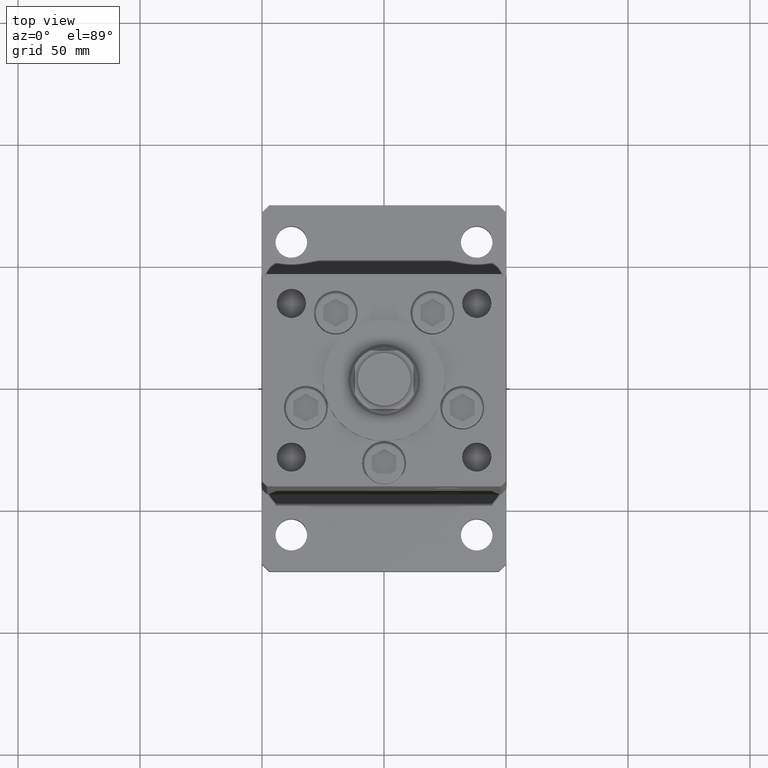
[diagram: clean part render]
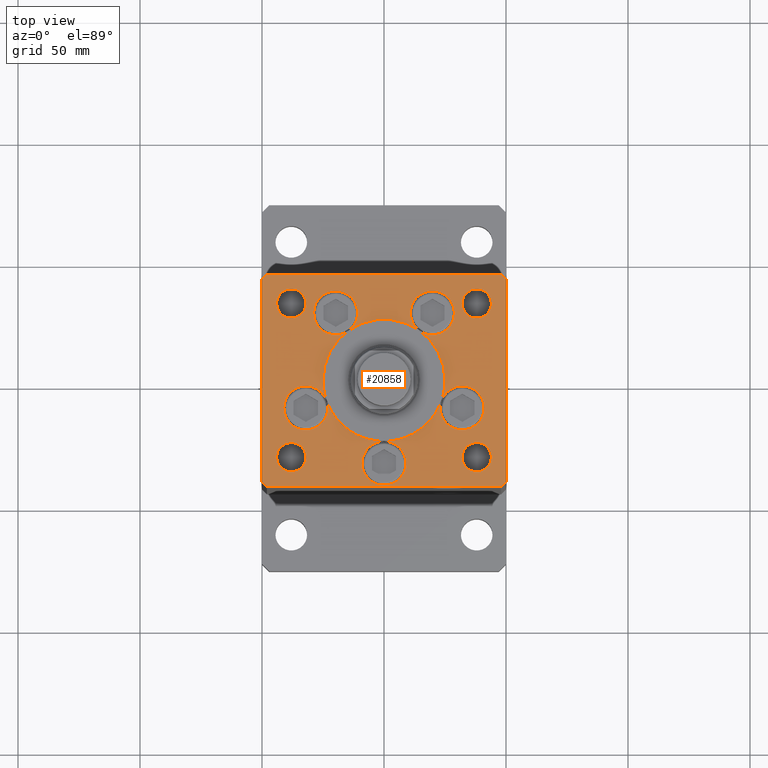
[diagram: same view with one face highlighted and labeled with its STEP entity id]
A machine part, top view. The second image highlights one B-rep face of the part: STEP entity #20858.
In plain terms, the highlighted planar face has unit normal (0, 0, 1).
Its self-contained STEP definition (entity closure, byte-faithful):
#986 = ORIENTED_EDGE ( 'NONE', *, *, #7525, .T. ) ;
#1014 = DIRECTION ( 'NONE',  ( 0.000000000000000000, 0.000000000000000000, 1.000000000000000000 ) ) ;
#1149 = DIRECTION ( 'NONE',  ( 0.000000000000000000, 0.000000000000000000, 1.000000000000000000 ) ) ;
#1277 = VERTEX_POINT ( 'NONE', #49824 ) ;
#1413 = ORIENTED_EDGE ( 'NONE', *, *, #6550, .F. ) ;
#1428 = EDGE_CURVE ( 'NONE', #3538, #51109, #27036, .T. ) ;
#1677 = DIRECTION ( 'NONE',  ( -0.000000000000000000, -0.000000000000000000, -1.000000000000000000 ) ) ;
#1945 = ORIENTED_EDGE ( 'NONE', *, *, #36682, .F. ) ;
#2417 = VECTOR ( 'NONE', #43467, 1000.000000000000114 ) ;
#2426 = DIRECTION ( 'NONE',  ( 1.000000000000000000, 0.000000000000000000, 0.000000000000000000 ) ) ;
#2515 = VERTEX_POINT ( 'NONE', #42644 ) ;
#2796 = CIRCLE ( 'NONE', #21165, 9.000000000000000000 ) ;
#3225 = VERTEX_POINT ( 'NONE', #17028 ) ;
#3246 = ORIENTED_EDGE ( 'NONE', *, *, #15481, .T. ) ;
#3436 = DIRECTION ( 'NONE',  ( 0.000000000000000000, 0.000000000000000000, 1.000000000000000000 ) ) ;
#3493 = CARTESIAN_POINT ( 'NONE',  ( 23.57022603955158502, -8.333333333333332149, 0.000000000000000000 ) ) ;
#3538 = VERTEX_POINT ( 'NONE', #16958 ) ;
#3561 = EDGE_LOOP ( 'NONE', ( #31557, #23728 ) ) ;
#3600 = EDGE_LOOP ( 'NONE', ( #49507, #19234 ) ) ;
#3733 = DIRECTION ( 'NONE',  ( 0.000000000000000000, 0.000000000000000000, 1.000000000000000000 ) ) ;
#4010 = EDGE_CURVE ( 'NONE', #24714, #39535, #30872, .T. ) ;
#4047 = ORIENTED_EDGE ( 'NONE', *, *, #25906, .F. ) ;
#4067 = FACE_OUTER_BOUND ( 'NONE', #22648, .T. ) ;
#4076 = ORIENTED_EDGE ( 'NONE', *, *, #34975, .T. ) ;
#4153 = AXIS2_PLACEMENT_3D ( 'NONE', #25589, #20690, #21497 ) ;
#4186 = VERTEX_POINT ( 'NONE', #24753 ) ;
#4311 = CARTESIAN_POINT ( 'NONE',  ( 0.000000000000000000, -6.938893903907228378E-15, 0.000000000000000000 ) ) ;
#4315 = AXIS2_PLACEMENT_3D ( 'NONE', #22117, #44020, #18030 ) ;
#4340 = FACE_BOUND ( 'NONE', #3600, .T. ) ;
#4771 = DIRECTION ( 'NONE',  ( 0.000000000000000000, 0.000000000000000000, 1.000000000000000000 ) ) ;
#4896 = CARTESIAN_POINT ( 'NONE',  ( 10.82068048781375147, 27.62499999999998934, 0.000000000000000000 ) ) ;
#4918 = CARTESIAN_POINT ( 'NONE',  ( 38.00000000000000711, -31.50000000000000711, 0.000000000000000000 ) ) ;
#5057 = DIRECTION ( 'NONE',  ( 1.000000000000000000, 0.000000000000000000, 0.000000000000000000 ) ) ;
#5167 = AXIS2_PLACEMENT_3D ( 'NONE', #33897, #50341, #42395 ) ;
#5171 = CARTESIAN_POINT ( 'NONE',  ( -32.00000000000000000, 31.50000000000000000, 0.000000000000000000 ) ) ;
#5356 = AXIS2_PLACEMENT_3D ( 'NONE', #22724, #39996, #2426 ) ;
#5465 = CARTESIAN_POINT ( 'NONE',  ( -19.82068048781374969, 27.62499999999998934, 0.000000000000000000 ) ) ;
#5547 = CARTESIAN_POINT ( 'NONE',  ( -23.57022603955158502, -8.333333333333332149, 0.000000000000000000 ) ) ;
#5569 = AXIS2_PLACEMENT_3D ( 'NONE', #47719, #10177, #26870 ) ;
#5956 = LINE ( 'NONE', #35556, #7146 ) ;
#6550 = EDGE_CURVE ( 'NONE', #34798, #26946, #53689, .T. ) ;
#6605 = VERTEX_POINT ( 'NONE', #7934 ) ;
#6687 = DIRECTION ( 'NONE',  ( 1.000000000000000000, 0.000000000000000000, 0.000000000000000000 ) ) ;
#6816 = ORIENTED_EDGE ( 'NONE', *, *, #37808, .T. ) ;
#6885 = DIRECTION ( 'NONE',  ( 0.000000000000000000, 0.000000000000000000, 1.000000000000000000 ) ) ;
#6927 = DIRECTION ( 'NONE',  ( -1.000000000000000000, 0.000000000000000000, 0.000000000000000000 ) ) ;
#6972 = VERTEX_POINT ( 'NONE', #31326 ) ;
#7077 = ORIENTED_EDGE ( 'NONE', *, *, #23672, .T. ) ;
#7146 = VECTOR ( 'NONE', #13677, 1000.000000000000000 ) ;
#7169 = CARTESIAN_POINT ( 'NONE',  ( 0.000000000000000000, -34.00000000000000000, 0.000000000000000000 ) ) ;
#7195 = CARTESIAN_POINT ( 'NONE',  ( -38.00000000000000000, 31.50000000000000000, 0.000000000000000000 ) ) ;
#7410 = DIRECTION ( 'NONE',  ( -1.000000000000000000, 0.000000000000000000, 0.000000000000000000 ) ) ;
#7525 = EDGE_CURVE ( 'NONE', #2515, #46200, #33718, .T. ) ;
#7590 = EDGE_CURVE ( 'NONE', #50502, #28848, #14506, .T. ) ;
#7934 = CARTESIAN_POINT ( 'NONE',  ( -25.00000000000000000, -6.938893903907228378E-15, 0.000000000000000000 ) ) ;
#7980 = DIRECTION ( 'NONE',  ( 1.000000000000000000, 0.000000000000000000, 0.000000000000000000 ) ) ;
#8004 = CIRCLE ( 'NONE', #22036, 8.999999999999998224 ) ;
#8215 = CARTESIAN_POINT ( 'NONE',  ( 25.00000000000000000, -3.877276906038844941E-15, 0.000000000000000000 ) ) ;
#8308 = AXIS2_PLACEMENT_3D ( 'NONE', #40608, #6885, #53209 ) ;
#8431 = CIRCLE ( 'NONE', #31171, 25.00000000000000000 ) ;
#8441 = DIRECTION ( 'NONE',  ( 1.000000000000000000, 0.000000000000000000, 0.000000000000000000 ) ) ;
#8725 = CARTESIAN_POINT ( 'NONE',  ( 38.00000000000000711, -31.50000000000000711, 0.000000000000000000 ) ) ;
#8777 = DIRECTION ( 'NONE',  ( -0.000000000000000000, -0.000000000000000000, -1.000000000000000000 ) ) ;
#9584 = CARTESIAN_POINT ( 'NONE',  ( 50.00000000000000000, 41.50000000000000711, 0.000000000000000000 ) ) ;
#9717 = AXIS2_PLACEMENT_3D ( 'NONE', #38292, #1014, #13616 ) ;
#9827 = CIRCLE ( 'NONE', #23801, 8.999999999999998224 ) ;
#10177 = DIRECTION ( 'NONE',  ( 0.000000000000000000, 0.000000000000000000, 1.000000000000000000 ) ) ;
#10377 = EDGE_CURVE ( 'NONE', #44685, #3538, #52082, .T. ) ;
#10464 = CARTESIAN_POINT ( 'NONE',  ( 38.00000000000000000, 31.50000000000000000, 0.000000000000000000 ) ) ;
#10584 = DIRECTION ( 'NONE',  ( 1.000000000000000000, 0.000000000000000000, 0.000000000000000000 ) ) ;
#10903 = CARTESIAN_POINT ( 'NONE',  ( 50.00000000000000000, -41.49999999999992895, 0.000000000000000000 ) ) ;
#11505 = CIRCLE ( 'NONE', #5356, 9.000000000000001776 ) ;
#12309 = EDGE_CURVE ( 'NONE', #26758, #4186, #36360, .T. ) ;
#12490 = CIRCLE ( 'NONE', #17747, 9.000000000000000000 ) ;
#12529 = ORIENTED_EDGE ( 'NONE', *, *, #35467, .F. ) ;
#12751 = CIRCLE ( 'NONE', #16237, 5.999999999999998224 ) ;
#12815 = CIRCLE ( 'NONE', #27636, 5.999999999999998224 ) ;
#12819 = EDGE_CURVE ( 'NONE', #52335, #14486, #42516, .T. ) ;
#12894 = DIRECTION ( 'NONE',  ( -1.000000000000000000, -2.168404344971008868E-16, 0.000000000000000000 ) ) ;
#13404 = CARTESIAN_POINT ( 'NONE',  ( 0.000000000000000000, 0.000000000000000000, 0.000000000000000000 ) ) ;
#13410 = DIRECTION ( 'NONE',  ( 0.000000000000000000, 0.000000000000000000, 1.000000000000000000 ) ) ;
#13616 = DIRECTION ( 'NONE',  ( 1.000000000000000000, 0.000000000000000000, 0.000000000000000000 ) ) ;
#13677 = DIRECTION ( 'NONE',  ( -0.7071067811865524577, -0.7071067811865426878, 0.000000000000000000 ) ) ;
#13715 = DIRECTION ( 'NONE',  ( 0.000000000000000000, 0.000000000000000000, 1.000000000000000000 ) ) ;
#13759 = AXIS2_PLACEMENT_3D ( 'NONE', #50840, #4771, #21775 ) ;
#13878 = AXIS2_PLACEMENT_3D ( 'NONE', #21342, #38350, #53963 ) ;
#14112 = CARTESIAN_POINT ( 'NONE',  ( -28.82068048781374969, 27.62499999999998934, 0.000000000000000000 ) ) ;
#14332 = VERTEX_POINT ( 'NONE', #39194 ) ;
#14415 = ORIENTED_EDGE ( 'NONE', *, *, #18754, .F. ) ;
#14486 = VERTEX_POINT ( 'NONE', #48247 ) ;
#14506 = LINE ( 'NONE', #52579, #50217 ) ;
#14722 = ORIENTED_EDGE ( 'NONE', *, *, #31650, .F. ) ;
#15146 = EDGE_CURVE ( 'NONE', #34798, #6605, #8431, .T. ) ;
#15290 = ORIENTED_EDGE ( 'NONE', *, *, #7590, .T. ) ;
#15350 = AXIS2_PLACEMENT_3D ( 'NONE', #39237, #1677, #47716 ) ;
#15481 = EDGE_CURVE ( 'NONE', #4186, #26758, #12815, .T. ) ;
#15659 = CIRCLE ( 'NONE', #50688, 5.999999999999998224 ) ;
#16066 = CARTESIAN_POINT ( 'NONE',  ( 0.000000000000000000, -6.938893903907228378E-15, 0.000000000000000000 ) ) ;
#16181 = VERTEX_POINT ( 'NONE', #23375 ) ;
#16237 = AXIS2_PLACEMENT_3D ( 'NONE', #10464, #27682, #48538 ) ;
#16264 = ORIENTED_EDGE ( 'NONE', *, *, #39011, .F. ) ;
#16435 = FACE_BOUND ( 'NONE', #31437, .T. ) ;
#16706 = FACE_BOUND ( 'NONE', #3561, .T. ) ;
#16958 = CARTESIAN_POINT ( 'NONE',  ( 0.000000000000000000, -25.00000000000000000, 0.000000000000000000 ) ) ;
#17028 = CARTESIAN_POINT ( 'NONE',  ( -48.00000000000000711, -43.50000000000002842, 0.000000000000000000 ) ) ;
#17039 = ORIENTED_EDGE ( 'NONE', *, *, #19059, .F. ) ;
#17212 = EDGE_CURVE ( 'NONE', #3538, #30354, #44368, .T. ) ;
#17333 = DIRECTION ( 'NONE',  ( 1.000000000000000000, 0.000000000000000000, 0.000000000000000000 ) ) ;
#17647 = CARTESIAN_POINT ( 'NONE',  ( 50.00000000000000000, 41.50000000000000711, 0.000000000000000000 ) ) ;
#17747 = AXIS2_PLACEMENT_3D ( 'NONE', #53639, #19947, #49259 ) ;
#18013 = EDGE_LOOP ( 'NONE', ( #42737, #3246 ) ) ;
#18030 = DIRECTION ( 'NONE',  ( 1.000000000000000000, 0.000000000000000000, 0.000000000000000000 ) ) ;
#18051 = CIRCLE ( 'NONE', #52179, 25.00000000000000000 ) ;
#18101 = DIRECTION ( 'NONE',  ( 0.7071067811865474617, 0.7071067811865474617, 0.000000000000000000 ) ) ;
#18145 = CARTESIAN_POINT ( 'NONE',  ( 19.82068048781374969, 27.62499999999998934, 0.000000000000000000 ) ) ;
#18271 = LINE ( 'NONE', #51696, #2417 ) ;
#18357 = ORIENTED_EDGE ( 'NONE', *, *, #53649, .T. ) ;
#18518 = EDGE_CURVE ( 'NONE', #1277, #3225, #18271, .T. ) ;
#18754 = EDGE_CURVE ( 'NONE', #6972, #51109, #19930, .T. ) ;
#19028 = AXIS2_PLACEMENT_3D ( 'NONE', #4918, #8777, #46039 ) ;
#19059 = EDGE_CURVE ( 'NONE', #37675, #26765, #43556, .T. ) ;
#19113 = DIRECTION ( 'NONE',  ( 0.000000000000000000, 0.000000000000000000, 1.000000000000000000 ) ) ;
#19147 = DIRECTION ( 'NONE',  ( 1.000000000000000000, 1.156482317317871331E-15, 0.000000000000000000 ) ) ;
#19234 = ORIENTED_EDGE ( 'NONE', *, *, #12819, .F. ) ;
#19416 = CARTESIAN_POINT ( 'NONE',  ( -48.00000000000000711, -43.50000000000002842, 0.000000000000000000 ) ) ;
#19545 = DIRECTION ( 'NONE',  ( -0.000000000000000000, -0.000000000000000000, -1.000000000000000000 ) ) ;
#19741 = ORIENTED_EDGE ( 'NONE', *, *, #26233, .F. ) ;
#19930 = CIRCLE ( 'NONE', #4153, 9.000000000000001776 ) ;
#19947 = DIRECTION ( 'NONE',  ( 0.000000000000000000, 0.000000000000000000, 1.000000000000000000 ) ) ;
#20690 = DIRECTION ( 'NONE',  ( 0.000000000000000000, 0.000000000000000000, 1.000000000000000000 ) ) ;
#20858 = ADVANCED_FACE ( 'NONE', ( #50950, #21337, #16706, #4340, #4067, #16435 ), #25165, .T. ) ;
#21043 = DIRECTION ( 'NONE',  ( 0.000000000000000000, 0.000000000000000000, 1.000000000000000000 ) ) ;
#21165 = AXIS2_PLACEMENT_3D ( 'NONE', #25515, #51030, #17333 ) ;
#21337 = FACE_BOUND ( 'NONE', #18013, .T. ) ;
#21342 = CARTESIAN_POINT ( 'NONE',  ( 0.000000000000000000, -6.938893903907228378E-15, 0.000000000000000000 ) ) ;
#21497 = DIRECTION ( 'NONE',  ( 1.000000000000000000, 0.000000000000000000, 0.000000000000000000 ) ) ;
#21775 = DIRECTION ( 'NONE',  ( 1.000000000000000000, 0.000000000000000000, 0.000000000000000000 ) ) ;
#22036 = AXIS2_PLACEMENT_3D ( 'NONE', #49240, #19113, #27574 ) ;
#22117 = CARTESIAN_POINT ( 'NONE',  ( 0.000000000000000000, -6.938893903907228378E-15, 0.000000000000000000 ) ) ;
#22221 = EDGE_CURVE ( 'NONE', #51109, #53795, #23346, .T. ) ;
#22390 = EDGE_CURVE ( 'NONE', #26628, #34798, #27758, .T. ) ;
#22420 = CARTESIAN_POINT ( 'NONE',  ( 50.00000000000000000, -41.49999999999992895, 0.000000000000000000 ) ) ;
#22648 = EDGE_LOOP ( 'NONE', ( #46128, #7077, #15290, #35999, #52600, #986, #4076, #6816 ) ) ;
#22724 = CARTESIAN_POINT ( 'NONE',  ( -32.05550741379015989, -11.33333333333332860, 0.000000000000000000 ) ) ;
#23346 = CIRCLE ( 'NONE', #13759, 9.000000000000001776 ) ;
#23375 = CARTESIAN_POINT ( 'NONE',  ( 44.00000000000000000, 31.50000000000000000, 0.000000000000000000 ) ) ;
#23410 = ORIENTED_EDGE ( 'NONE', *, *, #23474, .T. ) ;
#23445 = VERTEX_POINT ( 'NONE', #30122 ) ;
#23449 = DIRECTION ( 'NONE',  ( 1.000000000000000000, 0.000000000000000000, 0.000000000000000000 ) ) ;
#23474 = EDGE_CURVE ( 'NONE', #36119, #23445, #42670, .T. ) ;
#23601 = EDGE_CURVE ( 'NONE', #42959, #2515, #47123, .T. ) ;
#23672 = EDGE_CURVE ( 'NONE', #3225, #50502, #28149, .T. ) ;
#23728 = ORIENTED_EDGE ( 'NONE', *, *, #26214, .F. ) ;
#23801 = AXIS2_PLACEMENT_3D ( 'NONE', #53966, #13410, #34233 ) ;
#23854 = DIRECTION ( 'NONE',  ( 1.672022627447525486E-16, -1.000000000000000000, 0.000000000000000000 ) ) ;
#23970 = ORIENTED_EDGE ( 'NONE', *, *, #38059, .F. ) ;
#23983 = EDGE_LOOP ( 'NONE', ( #38382, #16264, #17039, #51867, #19741, #40531, #14415, #1945, #36468, #54081, #28334, #36285, #34351, #48996, #14722, #23970, #34404, #4047, #31486, #12529, #48668, #1413 ) ) ;
#24076 = CARTESIAN_POINT ( 'NONE',  ( -9.000000000000000000, -34.00000000000000000, 0.000000000000000000 ) ) ;
#24288 = AXIS2_PLACEMENT_3D ( 'NONE', #18145, #1149, #34581 ) ;
#24442 = DIRECTION ( 'NONE',  ( 1.000000000000000000, 0.000000000000000000, 0.000000000000000000 ) ) ;
#24714 = VERTEX_POINT ( 'NONE', #5547 ) ;
#24753 = CARTESIAN_POINT ( 'NONE',  ( -44.00000000000000000, 31.50000000000000000, 0.000000000000000000 ) ) ;
#25105 = CARTESIAN_POINT ( 'NONE',  ( 38.00000000000000000, 31.50000000000000000, 0.000000000000000000 ) ) ;
#25165 = PLANE ( 'NONE',  #29453 ) ;
#25515 = CARTESIAN_POINT ( 'NONE',  ( -19.82068048781374969, 27.62499999999998934, 0.000000000000000000 ) ) ;
#25589 = CARTESIAN_POINT ( 'NONE',  ( 32.05550741379015989, -11.33333333333332860, 0.000000000000000000 ) ) ;
#25906 = EDGE_CURVE ( 'NONE', #6605, #24714, #48013, .T. ) ;
#26214 = EDGE_CURVE ( 'NONE', #14332, #16181, #15659, .T. ) ;
#26233 = EDGE_CURVE ( 'NONE', #52336, #26628, #27019, .T. ) ;
#26288 = CARTESIAN_POINT ( 'NONE',  ( 47.99999999999999289, 43.50000000000000000, 0.000000000000000000 ) ) ;
#26628 = VERTEX_POINT ( 'NONE', #46162 ) ;
#26758 = VERTEX_POINT ( 'NONE', #5171 ) ;
#26765 = VERTEX_POINT ( 'NONE', #4896 ) ;
#26767 = CARTESIAN_POINT ( 'NONE',  ( -48.00000000000000000, 43.49999999999997868, 0.000000000000000000 ) ) ;
#26870 = DIRECTION ( 'NONE',  ( 1.000000000000000000, 0.000000000000000000, 0.000000000000000000 ) ) ;
#26946 = VERTEX_POINT ( 'NONE', #51500 ) ;
#27019 = CIRCLE ( 'NONE', #5167, 25.00000000000000000 ) ;
#27036 = CIRCLE ( 'NONE', #4315, 25.00000000000000000 ) ;
#27420 = CARTESIAN_POINT ( 'NONE',  ( -50.00000000000000711, 41.49999999999999289, 0.000000000000000000 ) ) ;
#27574 = DIRECTION ( 'NONE',  ( 1.000000000000000000, 0.000000000000000000, 0.000000000000000000 ) ) ;
#27577 = CIRCLE ( 'NONE', #31967, 6.000000000000005329 ) ;
#27636 = AXIS2_PLACEMENT_3D ( 'NONE', #7195, #19545, #6927 ) ;
#27682 = DIRECTION ( 'NONE',  ( 0.000000000000000000, 0.000000000000000000, 1.000000000000000000 ) ) ;
#27721 = AXIS2_PLACEMENT_3D ( 'NONE', #7169, #32927, #7980 ) ;
#27758 = CIRCLE ( 'NONE', #31289, 25.00000000000000000 ) ;
#28126 = EDGE_CURVE ( 'NONE', #28848, #42959, #31164, .T. ) ;
#28149 = LINE ( 'NONE', #19416, #45349 ) ;
#28334 = ORIENTED_EDGE ( 'NONE', *, *, #10377, .F. ) ;
#28848 = VERTEX_POINT ( 'NONE', #22420 ) ;
#29453 = AXIS2_PLACEMENT_3D ( 'NONE', #13404, #29815, #54233 ) ;
#29815 = DIRECTION ( 'NONE',  ( -0.000000000000000000, 0.000000000000000000, 1.000000000000000000 ) ) ;
#30122 = CARTESIAN_POINT ( 'NONE',  ( 32.00000000000000000, -31.50000000000000711, 0.000000000000000000 ) ) ;
#30354 = VERTEX_POINT ( 'NONE', #24076 ) ;
#30800 = CARTESIAN_POINT ( 'NONE',  ( 32.05550741379015989, -11.33333333333332860, 0.000000000000000000 ) ) ;
#30872 = CIRCLE ( 'NONE', #52755, 9.000000000000001776 ) ;
#31164 = LINE ( 'NONE', #10903, #51580 ) ;
#31171 = AXIS2_PLACEMENT_3D ( 'NONE', #32205, #48126, #10584 ) ;
#31289 = AXIS2_PLACEMENT_3D ( 'NONE', #40915, #36253, #24442 ) ;
#31301 = CARTESIAN_POINT ( 'NONE',  ( -41.05550741379015989, -11.33333333333332682, 0.000000000000000000 ) ) ;
#31326 = CARTESIAN_POINT ( 'NONE',  ( 41.05550741379015989, -11.33333333333332860, 0.000000000000000000 ) ) ;
#31437 = EDGE_LOOP ( 'NONE', ( #23410, #18357 ) ) ;
#31486 = ORIENTED_EDGE ( 'NONE', *, *, #15146, .F. ) ;
#31557 = ORIENTED_EDGE ( 'NONE', *, *, #53511, .F. ) ;
#31650 = EDGE_CURVE ( 'NONE', #38134, #24714, #43816, .T. ) ;
#31967 = AXIS2_PLACEMENT_3D ( 'NONE', #42429, #46535, #50659 ) ;
#32205 = CARTESIAN_POINT ( 'NONE',  ( 0.000000000000000000, -6.938893903907228378E-15, 0.000000000000000000 ) ) ;
#32589 = CARTESIAN_POINT ( 'NONE',  ( -14.57402977045128978, 20.31249999999999289, 0.000000000000000000 ) ) ;
#32927 = DIRECTION ( 'NONE',  ( 0.000000000000000000, 0.000000000000000000, 1.000000000000000000 ) ) ;
#32931 = CIRCLE ( 'NONE', #46032, 25.00000000000000000 ) ;
#33718 = LINE ( 'NONE', #26288, #43213 ) ;
#33857 = CARTESIAN_POINT ( 'NONE',  ( -38.00000000000000711, -31.50000000000000711, 0.000000000000000000 ) ) ;
#33897 = CARTESIAN_POINT ( 'NONE',  ( 0.000000000000000000, -6.938893903907228378E-15, 0.000000000000000000 ) ) ;
#34233 = DIRECTION ( 'NONE',  ( 1.000000000000000000, 0.000000000000000000, 0.000000000000000000 ) ) ;
#34270 = DIRECTION ( 'NONE',  ( 1.000000000000000000, 0.000000000000000000, 0.000000000000000000 ) ) ;
#34351 = ORIENTED_EDGE ( 'NONE', *, *, #17212, .F. ) ;
#34404 = ORIENTED_EDGE ( 'NONE', *, *, #4010, .F. ) ;
#34581 = DIRECTION ( 'NONE',  ( 1.000000000000000000, 0.000000000000000000, 0.000000000000000000 ) ) ;
#34798 = VERTEX_POINT ( 'NONE', #32589 ) ;
#34849 = EDGE_CURVE ( 'NONE', #26628, #37675, #9827, .T. ) ;
#34975 = EDGE_CURVE ( 'NONE', #46200, #43177, #5956, .T. ) ;
#35467 = EDGE_CURVE ( 'NONE', #44586, #34798, #2796, .T. ) ;
#35556 = CARTESIAN_POINT ( 'NONE',  ( -48.00000000000000000, 43.49999999999997868, 0.000000000000000000 ) ) ;
#35999 = ORIENTED_EDGE ( 'NONE', *, *, #28126, .T. ) ;
#36119 = VERTEX_POINT ( 'NONE', #46653 ) ;
#36253 = DIRECTION ( 'NONE',  ( 0.000000000000000000, 0.000000000000000000, 1.000000000000000000 ) ) ;
#36285 = ORIENTED_EDGE ( 'NONE', *, *, #40755, .F. ) ;
#36360 = CIRCLE ( 'NONE', #15350, 5.999999999999998224 ) ;
#36468 = ORIENTED_EDGE ( 'NONE', *, *, #22221, .F. ) ;
#36682 = EDGE_CURVE ( 'NONE', #53795, #6972, #36860, .T. ) ;
#36860 = CIRCLE ( 'NONE', #50882, 9.000000000000001776 ) ;
#37148 = EDGE_CURVE ( 'NONE', #26946, #44586, #44742, .T. ) ;
#37416 = VECTOR ( 'NONE', #38912, 999.9999999999998863 ) ;
#37675 = VERTEX_POINT ( 'NONE', #51865 ) ;
#37808 = EDGE_CURVE ( 'NONE', #43177, #1277, #44160, .T. ) ;
#38059 = EDGE_CURVE ( 'NONE', #39535, #38134, #11505, .T. ) ;
#38134 = VERTEX_POINT ( 'NONE', #49572 ) ;
#38292 = CARTESIAN_POINT ( 'NONE',  ( -32.05550741379015989, -11.33333333333332860, 0.000000000000000000 ) ) ;
#38350 = DIRECTION ( 'NONE',  ( 0.000000000000000000, 0.000000000000000000, 1.000000000000000000 ) ) ;
#38382 = ORIENTED_EDGE ( 'NONE', *, *, #22390, .F. ) ;
#38912 = DIRECTION ( 'NONE',  ( -0.7071067811865512365, 0.7071067811865439090, 0.000000000000000000 ) ) ;
#39011 = EDGE_CURVE ( 'NONE', #26765, #26628, #8004, .T. ) ;
#39053 = CARTESIAN_POINT ( 'NONE',  ( 9.000000000000000000, -34.00000000000000000, 0.000000000000000000 ) ) ;
#39194 = CARTESIAN_POINT ( 'NONE',  ( 32.00000000000000000, 31.50000000000000000, 0.000000000000000000 ) ) ;
#39237 = CARTESIAN_POINT ( 'NONE',  ( -38.00000000000000000, 31.50000000000000000, 0.000000000000000000 ) ) ;
#39535 = VERTEX_POINT ( 'NONE', #31301 ) ;
#39996 = DIRECTION ( 'NONE',  ( 0.000000000000000000, 0.000000000000000000, 1.000000000000000000 ) ) ;
#40531 = ORIENTED_EDGE ( 'NONE', *, *, #51547, .F. ) ;
#40608 = CARTESIAN_POINT ( 'NONE',  ( 0.000000000000000000, -34.00000000000000000, 0.000000000000000000 ) ) ;
#40755 = EDGE_CURVE ( 'NONE', #30354, #44685, #12490, .T. ) ;
#40915 = CARTESIAN_POINT ( 'NONE',  ( 0.000000000000000000, -6.938893903907228378E-15, 0.000000000000000000 ) ) ;
#41307 = DIRECTION ( 'NONE',  ( 1.000000000000000000, 0.000000000000000000, 0.000000000000000000 ) ) ;
#41425 = CARTESIAN_POINT ( 'NONE',  ( -50.00000000000000711, 41.49999999999999289, 0.000000000000000000 ) ) ;
#42395 = DIRECTION ( 'NONE',  ( 1.000000000000000000, 0.000000000000000000, 0.000000000000000000 ) ) ;
#42429 = CARTESIAN_POINT ( 'NONE',  ( -38.00000000000000711, -31.50000000000000711, 0.000000000000000000 ) ) ;
#42481 = CARTESIAN_POINT ( 'NONE',  ( -44.00000000000001421, -31.50000000000000711, 0.000000000000000000 ) ) ;
#42516 = CIRCLE ( 'NONE', #51242, 6.000000000000005329 ) ;
#42644 = CARTESIAN_POINT ( 'NONE',  ( 47.99999999999999289, 43.50000000000000000, 0.000000000000000000 ) ) ;
#42670 = CIRCLE ( 'NONE', #19028, 6.000000000000005329 ) ;
#42737 = ORIENTED_EDGE ( 'NONE', *, *, #12309, .T. ) ;
#42959 = VERTEX_POINT ( 'NONE', #17647 ) ;
#43177 = VERTEX_POINT ( 'NONE', #41425 ) ;
#43213 = VECTOR ( 'NONE', #12894, 1000.000000000000000 ) ;
#43467 = DIRECTION ( 'NONE',  ( 0.7071067811865402453, -0.7071067811865549002, 0.000000000000000000 ) ) ;
#43556 = CIRCLE ( 'NONE', #24288, 8.999999999999998224 ) ;
#43816 = CIRCLE ( 'NONE', #9717, 9.000000000000001776 ) ;
#44020 = DIRECTION ( 'NONE',  ( 0.000000000000000000, 0.000000000000000000, 1.000000000000000000 ) ) ;
#44160 = LINE ( 'NONE', #27420, #52609 ) ;
#44368 = CIRCLE ( 'NONE', #27721, 9.000000000000000000 ) ;
#44586 = VERTEX_POINT ( 'NONE', #14112 ) ;
#44685 = VERTEX_POINT ( 'NONE', #39053 ) ;
#44742 = CIRCLE ( 'NONE', #51765, 9.000000000000000000 ) ;
#44955 = DIRECTION ( 'NONE',  ( -0.000000000000000000, -0.000000000000000000, -1.000000000000000000 ) ) ;
#45105 = CARTESIAN_POINT ( 'NONE',  ( 23.05550741379015633, -11.33333333333332682, 0.000000000000000000 ) ) ;
#45349 = VECTOR ( 'NONE', #19147, 1000.000000000000000 ) ;
#45996 = AXIS2_PLACEMENT_3D ( 'NONE', #8725, #44955, #7410 ) ;
#46032 = AXIS2_PLACEMENT_3D ( 'NONE', #4311, #21043, #8441 ) ;
#46039 = DIRECTION ( 'NONE',  ( -1.000000000000000000, 0.000000000000000000, 0.000000000000000000 ) ) ;
#46128 = ORIENTED_EDGE ( 'NONE', *, *, #18518, .T. ) ;
#46162 = CARTESIAN_POINT ( 'NONE',  ( 14.57402977045128623, 20.31249999999998579, 0.000000000000000000 ) ) ;
#46200 = VERTEX_POINT ( 'NONE', #26767 ) ;
#46535 = DIRECTION ( 'NONE',  ( 0.000000000000000000, 0.000000000000000000, 1.000000000000000000 ) ) ;
#46653 = CARTESIAN_POINT ( 'NONE',  ( 44.00000000000001421, -31.50000000000000711, 0.000000000000000000 ) ) ;
#47123 = LINE ( 'NONE', #9584, #37416 ) ;
#47526 = DIRECTION ( 'NONE',  ( 0.000000000000000000, 0.000000000000000000, 1.000000000000000000 ) ) ;
#47716 = DIRECTION ( 'NONE',  ( -1.000000000000000000, 0.000000000000000000, 0.000000000000000000 ) ) ;
#47719 = CARTESIAN_POINT ( 'NONE',  ( -19.82068048781374969, 27.62499999999998934, 0.000000000000000000 ) ) ;
#47906 = DIRECTION ( 'NONE',  ( 0.000000000000000000, 1.000000000000000000, 0.000000000000000000 ) ) ;
#48013 = CIRCLE ( 'NONE', #13878, 25.00000000000000000 ) ;
#48094 = DIRECTION ( 'NONE',  ( 0.000000000000000000, 0.000000000000000000, 1.000000000000000000 ) ) ;
#48126 = DIRECTION ( 'NONE',  ( 0.000000000000000000, 0.000000000000000000, 1.000000000000000000 ) ) ;
#48247 = CARTESIAN_POINT ( 'NONE',  ( -32.00000000000000000, -31.50000000000000711, 0.000000000000000000 ) ) ;
#48538 = DIRECTION ( 'NONE',  ( 1.000000000000000000, 0.000000000000000000, 0.000000000000000000 ) ) ;
#48668 = ORIENTED_EDGE ( 'NONE', *, *, #37148, .F. ) ;
#48880 = DIRECTION ( 'NONE',  ( 1.000000000000000000, 0.000000000000000000, 0.000000000000000000 ) ) ;
#48996 = ORIENTED_EDGE ( 'NONE', *, *, #51293, .F. ) ;
#49139 = CARTESIAN_POINT ( 'NONE',  ( 48.00000000000000711, -43.49999999999992184, 0.000000000000000000 ) ) ;
#49167 = CARTESIAN_POINT ( 'NONE',  ( -32.05550741379015989, -11.33333333333332860, 0.000000000000000000 ) ) ;
#49240 = CARTESIAN_POINT ( 'NONE',  ( 19.82068048781374969, 27.62499999999998934, 0.000000000000000000 ) ) ;
#49259 = DIRECTION ( 'NONE',  ( 1.000000000000000000, 0.000000000000000000, 0.000000000000000000 ) ) ;
#49507 = ORIENTED_EDGE ( 'NONE', *, *, #53587, .F. ) ;
#49572 = CARTESIAN_POINT ( 'NONE',  ( -23.05550741379015633, -11.33333333333332860, 0.000000000000000000 ) ) ;
#49824 = CARTESIAN_POINT ( 'NONE',  ( -49.99999999999999289, -41.50000000000000000, 0.000000000000000000 ) ) ;
#50217 = VECTOR ( 'NONE', #18101, 1000.000000000000114 ) ;
#50341 = DIRECTION ( 'NONE',  ( 0.000000000000000000, 0.000000000000000000, 1.000000000000000000 ) ) ;
#50502 = VERTEX_POINT ( 'NONE', #49139 ) ;
#50583 = DIRECTION ( 'NONE',  ( 0.000000000000000000, 0.000000000000000000, 1.000000000000000000 ) ) ;
#50659 = DIRECTION ( 'NONE',  ( 1.000000000000000000, 0.000000000000000000, 0.000000000000000000 ) ) ;
#50688 = AXIS2_PLACEMENT_3D ( 'NONE', #25105, #3733, #41307 ) ;
#50840 = CARTESIAN_POINT ( 'NONE',  ( 32.05550741379015989, -11.33333333333332860, 0.000000000000000000 ) ) ;
#50882 = AXIS2_PLACEMENT_3D ( 'NONE', #30800, #47526, #48880 ) ;
#50950 = FACE_BOUND ( 'NONE', #23983, .T. ) ;
#51030 = DIRECTION ( 'NONE',  ( 0.000000000000000000, 0.000000000000000000, 1.000000000000000000 ) ) ;
#51109 = VERTEX_POINT ( 'NONE', #3493 ) ;
#51242 = AXIS2_PLACEMENT_3D ( 'NONE', #33857, #50583, #5057 ) ;
#51257 = CIRCLE ( 'NONE', #45996, 6.000000000000005329 ) ;
#51293 = EDGE_CURVE ( 'NONE', #24714, #3538, #32931, .T. ) ;
#51500 = CARTESIAN_POINT ( 'NONE',  ( -10.82068048781375147, 27.62499999999998934, 0.000000000000000000 ) ) ;
#51547 = EDGE_CURVE ( 'NONE', #51109, #52336, #18051, .T. ) ;
#51580 = VECTOR ( 'NONE', #47906, 1000.000000000000000 ) ;
#51696 = CARTESIAN_POINT ( 'NONE',  ( -49.99999999999999289, -41.50000000000000000, 0.000000000000000000 ) ) ;
#51765 = AXIS2_PLACEMENT_3D ( 'NONE', #5465, #13715, #34270 ) ;
#51865 = CARTESIAN_POINT ( 'NONE',  ( 28.82068048781374969, 27.62499999999998934, 0.000000000000000000 ) ) ;
#51867 = ORIENTED_EDGE ( 'NONE', *, *, #34849, .F. ) ;
#52082 = CIRCLE ( 'NONE', #8308, 9.000000000000000000 ) ;
#52179 = AXIS2_PLACEMENT_3D ( 'NONE', #16066, #3436, #23449 ) ;
#52335 = VERTEX_POINT ( 'NONE', #42481 ) ;
#52336 = VERTEX_POINT ( 'NONE', #8215 ) ;
#52579 = CARTESIAN_POINT ( 'NONE',  ( 48.00000000000000711, -43.49999999999992184, 0.000000000000000000 ) ) ;
#52600 = ORIENTED_EDGE ( 'NONE', *, *, #23601, .T. ) ;
#52609 = VECTOR ( 'NONE', #23854, 1000.000000000000000 ) ;
#52755 = AXIS2_PLACEMENT_3D ( 'NONE', #49167, #48094, #6687 ) ;
#53209 = DIRECTION ( 'NONE',  ( 1.000000000000000000, 0.000000000000000000, 0.000000000000000000 ) ) ;
#53511 = EDGE_CURVE ( 'NONE', #16181, #14332, #12751, .T. ) ;
#53587 = EDGE_CURVE ( 'NONE', #14486, #52335, #27577, .T. ) ;
#53639 = CARTESIAN_POINT ( 'NONE',  ( 0.000000000000000000, -34.00000000000000000, 0.000000000000000000 ) ) ;
#53649 = EDGE_CURVE ( 'NONE', #23445, #36119, #51257, .T. ) ;
#53689 = CIRCLE ( 'NONE', #5569, 9.000000000000000000 ) ;
#53795 = VERTEX_POINT ( 'NONE', #45105 ) ;
#53963 = DIRECTION ( 'NONE',  ( 1.000000000000000000, 0.000000000000000000, 0.000000000000000000 ) ) ;
#53966 = CARTESIAN_POINT ( 'NONE',  ( 19.82068048781374969, 27.62499999999998934, 0.000000000000000000 ) ) ;
#54081 = ORIENTED_EDGE ( 'NONE', *, *, #1428, .F. ) ;
#54233 = DIRECTION ( 'NONE',  ( 1.000000000000000000, 0.000000000000000000, 0.000000000000000000 ) ) ;